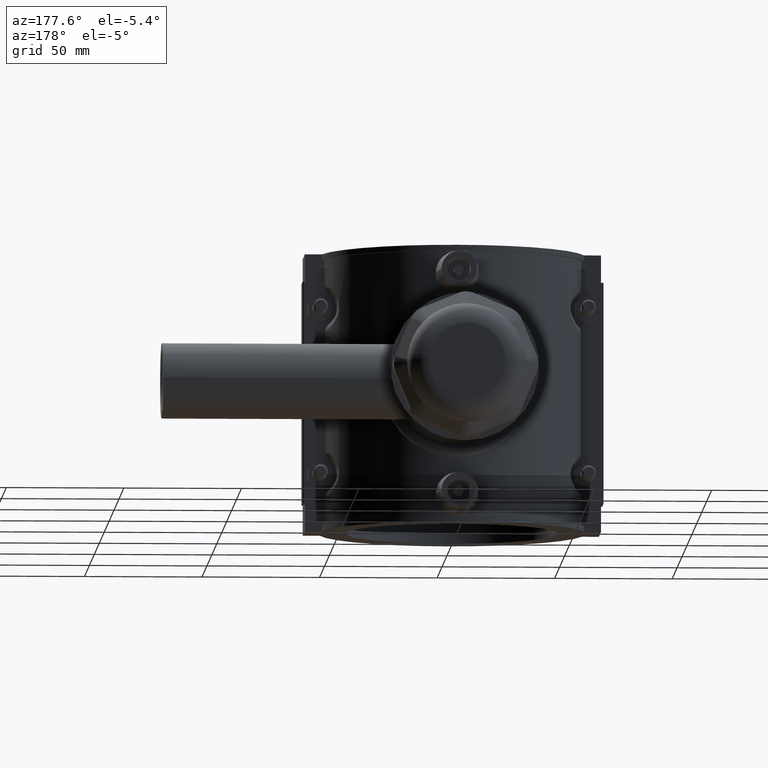
[diagram: clean part render]
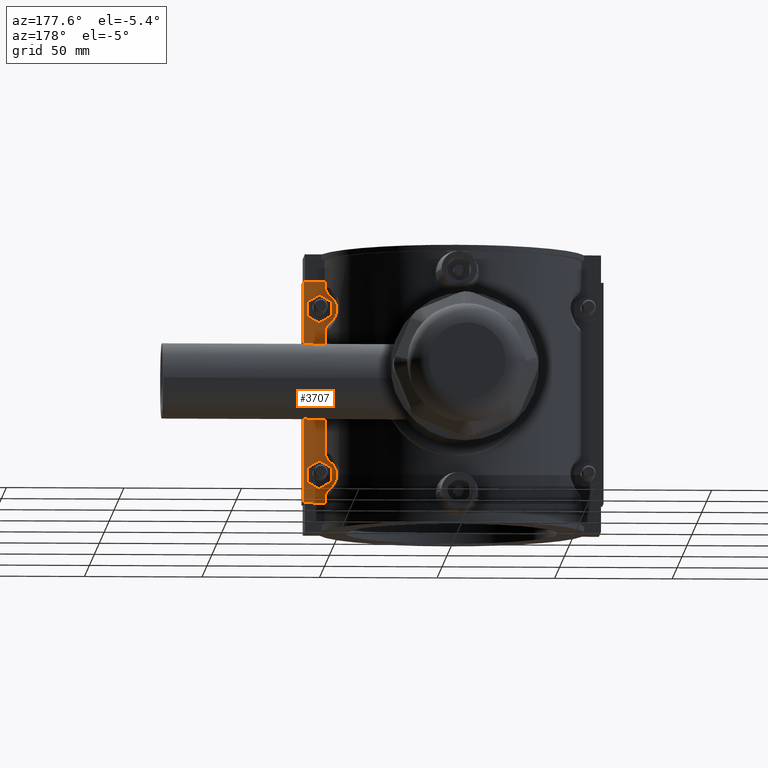
[diagram: same view with one face highlighted and labeled with its STEP entity id]
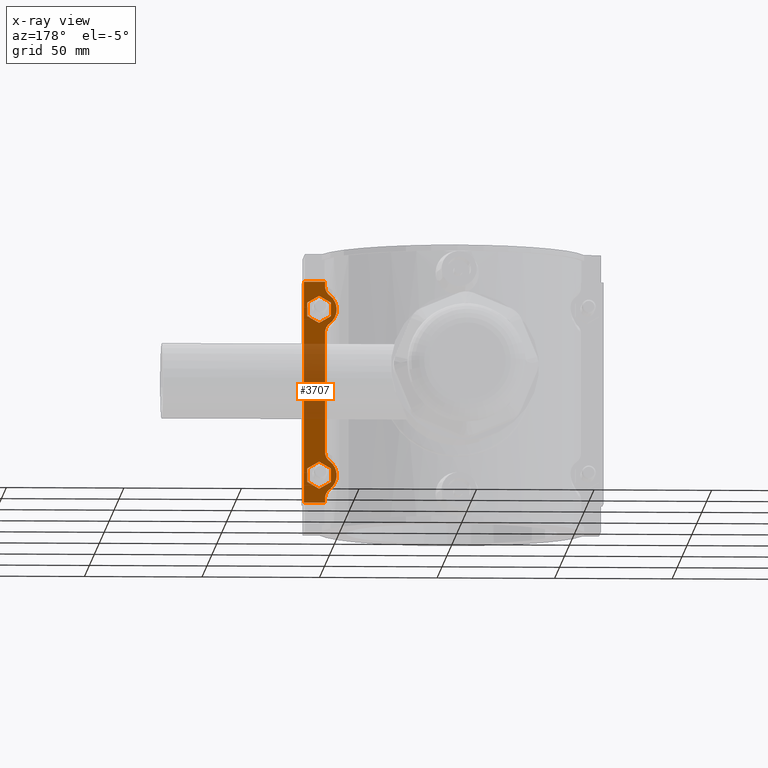
[diagram: x-ray of the same camera — body ghosted, the highlighted face saturated]
A machine part, auxiliary view. The second image highlights one B-rep face of the part: STEP entity #3707.
The next image is the same camera in x-ray: the body ghosted, the highlighted face saturated — about 37% of this face is hidden behind the body in this view.
In plain terms, the highlighted planar face has unit normal (-0, 1, 0).
Its self-contained STEP definition (entity closure, byte-faithful):
#142=LINE('',#6589,#441);
#143=LINE('',#6605,#442);
#144=LINE('',#6622,#443);
#200=LINE('',#7137,#499);
#201=LINE('',#7139,#500);
#202=LINE('',#7178,#501);
#203=LINE('',#7181,#502);
#204=LINE('',#7183,#503);
#205=LINE('',#7185,#504);
#206=LINE('',#7187,#505);
#207=LINE('',#7189,#506);
#208=LINE('',#7190,#507);
#209=LINE('',#7193,#508);
#210=LINE('',#7195,#509);
#211=LINE('',#7197,#510);
#212=LINE('',#7199,#511);
#213=LINE('',#7201,#512);
#214=LINE('',#7202,#513);
#441=VECTOR('',#4498,2.01853589746611);
#442=VECTOR('',#4499,51.2370717949322);
#443=VECTOR('',#4500,2.01853589746609);
#499=VECTOR('',#4602,94.4);
#500=VECTOR('',#4605,9.06125001435102);
#501=VECTOR('',#4610,9.06125001435102);
#502=VECTOR('',#4611,5.77350269189626);
#503=VECTOR('',#4612,5.77350269189626);
#504=VECTOR('',#4613,5.77350269189626);
#505=VECTOR('',#4614,5.77350269189625);
#506=VECTOR('',#4615,5.77350269189625);
#507=VECTOR('',#4616,5.77350269189626);
#508=VECTOR('',#4617,5.77350269189627);
#509=VECTOR('',#4618,5.77350269189624);
#510=VECTOR('',#4619,5.77350269189626);
#511=VECTOR('',#4620,5.77350269189626);
#512=VECTOR('',#4621,5.77350269189626);
#513=VECTOR('',#4622,5.77350269189626);
#706=PLANE('',#3975);
#843=CIRCLE('',#3976,7.5);
#844=CIRCLE('',#3977,7.5);
#922=FACE_BOUND('',#1300,.T.);
#923=FACE_BOUND('',#1301,.T.);
#1058=FACE_OUTER_BOUND('',#1299,.T.);
#1299=EDGE_LOOP('',(#2962,#2963,#2964,#2965,#2966,#2967,#2968,#2969,#2970,
#2971,#2972,#2973));
#1300=EDGE_LOOP('',(#2974,#2975,#2976,#2977,#2978,#2979));
#1301=EDGE_LOOP('',(#2980,#2981,#2982,#2983,#2984,#2985));
#1531=B_SPLINE_CURVE_WITH_KNOTS('',3,(#7141,#7142,#7143,#7144,#7145,#7146,
#7147,#7148),.UNSPECIFIED.,.F.,.F.,(4,2,2,4),(-0.440064843768215,-0.308413227353408,
-0.175431225091515,0.),.UNSPECIFIED.);
#1532=B_SPLINE_CURVE_WITH_KNOTS('',3,(#7151,#7152,#7153,#7154,#7155,#7156,
#7157,#7158),.UNSPECIFIED.,.F.,.F.,(4,2,2,4),(-0.440521008741073,-0.317596506922484,
-0.194829122940551,0.),.UNSPECIFIED.);
#1533=B_SPLINE_CURVE_WITH_KNOTS('',3,(#7160,#7161,#7162,#7163,#7164,#7165,
#7166,#7167),.UNSPECIFIED.,.F.,.F.,(4,2,2,4),(-0.440064843768218,-0.308413227366497,
-0.175431225101102,0.),.UNSPECIFIED.);
#1534=B_SPLINE_CURVE_WITH_KNOTS('',3,(#7170,#7171,#7172,#7173,#7174,#7175,
#7176,#7177),.UNSPECIFIED.,.F.,.F.,(4,2,2,4),(-0.440521008741431,-0.317596506941952,
-0.194829122971924,0.),.UNSPECIFIED.);
#1710=VERTEX_POINT('',#6586);
#1711=VERTEX_POINT('',#6588);
#1712=VERTEX_POINT('',#6590);
#1713=VERTEX_POINT('',#6604);
#1714=VERTEX_POINT('',#6606);
#1715=VERTEX_POINT('',#6621);
#1770=VERTEX_POINT('',#7130);
#1773=VERTEX_POINT('',#7135);
#1774=VERTEX_POINT('',#7140);
#1775=VERTEX_POINT('',#7149);
#1776=VERTEX_POINT('',#7159);
#1777=VERTEX_POINT('',#7168);
#1778=VERTEX_POINT('',#7179);
#1779=VERTEX_POINT('',#7180);
#1780=VERTEX_POINT('',#7182);
#1781=VERTEX_POINT('',#7184);
#1782=VERTEX_POINT('',#7186);
#1783=VERTEX_POINT('',#7188);
#1784=VERTEX_POINT('',#7191);
#1785=VERTEX_POINT('',#7192);
#1786=VERTEX_POINT('',#7194);
#1787=VERTEX_POINT('',#7196);
#1788=VERTEX_POINT('',#7198);
#1789=VERTEX_POINT('',#7200);
#2132=EDGE_CURVE('',#1710,#1711,#142,.T.);
#2134=EDGE_CURVE('',#1712,#1713,#143,.T.);
#2136=EDGE_CURVE('',#1714,#1715,#144,.T.);
#2214=EDGE_CURVE('',#1773,#1770,#200,.T.);
#2215=EDGE_CURVE('',#1715,#1773,#201,.T.);
#2216=EDGE_CURVE('',#1774,#1714,#1531,.T.);
#2217=EDGE_CURVE('',#1775,#1774,#843,.T.);
#2218=EDGE_CURVE('',#1713,#1775,#1532,.T.);
#2219=EDGE_CURVE('',#1776,#1712,#1533,.T.);
#2220=EDGE_CURVE('',#1777,#1776,#844,.T.);
#2221=EDGE_CURVE('',#1711,#1777,#1534,.T.);
#2222=EDGE_CURVE('',#1770,#1710,#202,.T.);
#2223=EDGE_CURVE('',#1778,#1779,#203,.T.);
#2224=EDGE_CURVE('',#1780,#1778,#204,.T.);
#2225=EDGE_CURVE('',#1781,#1780,#205,.T.);
#2226=EDGE_CURVE('',#1782,#1781,#206,.T.);
#2227=EDGE_CURVE('',#1783,#1782,#207,.T.);
#2228=EDGE_CURVE('',#1779,#1783,#208,.T.);
#2229=EDGE_CURVE('',#1784,#1785,#209,.T.);
#2230=EDGE_CURVE('',#1786,#1784,#210,.T.);
#2231=EDGE_CURVE('',#1787,#1786,#211,.T.);
#2232=EDGE_CURVE('',#1788,#1787,#212,.T.);
#2233=EDGE_CURVE('',#1789,#1788,#213,.T.);
#2234=EDGE_CURVE('',#1785,#1789,#214,.T.);
#2962=ORIENTED_EDGE('',*,*,#2214,.F.);
#2963=ORIENTED_EDGE('',*,*,#2215,.F.);
#2964=ORIENTED_EDGE('',*,*,#2136,.F.);
#2965=ORIENTED_EDGE('',*,*,#2216,.F.);
#2966=ORIENTED_EDGE('',*,*,#2217,.F.);
#2967=ORIENTED_EDGE('',*,*,#2218,.F.);
#2968=ORIENTED_EDGE('',*,*,#2134,.F.);
#2969=ORIENTED_EDGE('',*,*,#2219,.F.);
#2970=ORIENTED_EDGE('',*,*,#2220,.F.);
#2971=ORIENTED_EDGE('',*,*,#2221,.F.);
#2972=ORIENTED_EDGE('',*,*,#2132,.F.);
#2973=ORIENTED_EDGE('',*,*,#2222,.F.);
#2974=ORIENTED_EDGE('',*,*,#2223,.F.);
#2975=ORIENTED_EDGE('',*,*,#2224,.F.);
#2976=ORIENTED_EDGE('',*,*,#2225,.F.);
#2977=ORIENTED_EDGE('',*,*,#2226,.F.);
#2978=ORIENTED_EDGE('',*,*,#2227,.F.);
#2979=ORIENTED_EDGE('',*,*,#2228,.F.);
#2980=ORIENTED_EDGE('',*,*,#2229,.F.);
#2981=ORIENTED_EDGE('',*,*,#2230,.F.);
#2982=ORIENTED_EDGE('',*,*,#2231,.F.);
#2983=ORIENTED_EDGE('',*,*,#2232,.F.);
#2984=ORIENTED_EDGE('',*,*,#2233,.F.);
#2985=ORIENTED_EDGE('',*,*,#2234,.F.);
#3707=ADVANCED_FACE('',(#1058,#922,#923),#706,.T.);
#3975=AXIS2_PLACEMENT_3D('',#7138,#4603,#4604);
#3976=AXIS2_PLACEMENT_3D('',#7150,#4606,#4607);
#3977=AXIS2_PLACEMENT_3D('',#7169,#4608,#4609);
#4498=DIRECTION('',(0.,0.,-1.));
#4499=DIRECTION('',(0.,0.,-1.));
#4500=DIRECTION('',(0.,0.,-1.));
#4602=DIRECTION('',(0.,0.,1.));
#4603=DIRECTION('center_axis',(-2.67015664150354E-16,1.,0.));
#4604=DIRECTION('ref_axis',(-1.,-3.5527136788005E-16,0.));
#4605=DIRECTION('',(1.,2.67015664150354E-16,0.));
#4606=DIRECTION('center_axis',(2.67015664150354E-16,-1.,0.));
#4607=DIRECTION('ref_axis',(-1.,0.,0.));
#4608=DIRECTION('center_axis',(2.67015664150354E-16,-1.,0.));
#4609=DIRECTION('ref_axis',(-1.,0.,0.));
#4610=DIRECTION('',(-1.,-2.67015664150354E-16,0.));
#4611=DIRECTION('',(-0.866025403784439,-2.31242348362581E-16,-0.5));
#4612=DIRECTION('',(0.,0.,-1.));
#4613=DIRECTION('',(0.866025403784439,2.31242348362581E-16,-0.499999999999999));
#4614=DIRECTION('',(0.866025403784439,2.3124234836258E-16,0.5));
#4615=DIRECTION('',(0.,0.,1.));
#4616=DIRECTION('',(-0.866025403784438,-2.31242348362581E-16,0.5));
#4617=DIRECTION('',(-0.866025403784439,-2.31242348362581E-16,0.499999999999999));
#4618=DIRECTION('',(-0.866025403784438,-2.3124234836258E-16,-0.500000000000002));
#4619=DIRECTION('',(0.,0.,-1.));
#4620=DIRECTION('',(0.866025403784438,2.31242348362581E-16,-0.5));
#4621=DIRECTION('',(0.866025403784438,2.3124234836258E-16,0.5));
#4622=DIRECTION('',(0.,0.,1.));
#6586=CARTESIAN_POINT('',(54.438749985649,12.2500000000001,47.2));
#6588=CARTESIAN_POINT('',(54.438749985649,12.2500000000001,45.1814641025339));
#6589=CARTESIAN_POINT('',(54.438749985649,12.2500000000001,0.));
#6590=CARTESIAN_POINT('',(54.438749985649,12.2500000000001,25.6185358974661));
#6604=CARTESIAN_POINT('',(54.438749985649,12.2500000000001,-25.6185358974661));
#6605=CARTESIAN_POINT('',(54.438749985649,12.2500000000001,0.));
#6606=CARTESIAN_POINT('',(54.438749985649,12.2500000000001,-45.1814641025339));
#6621=CARTESIAN_POINT('',(54.438749985649,12.2500000000001,-47.2));
#6622=CARTESIAN_POINT('',(54.438749985649,12.2500000000001,0.));
#7130=CARTESIAN_POINT('',(63.5,12.2500000000001,47.2));
#7135=CARTESIAN_POINT('',(63.5,12.2500000000001,-47.2));
#7137=CARTESIAN_POINT('',(63.5,12.2500000000001,0.));
#7138=CARTESIAN_POINT('Origin',(64.,12.2500000000001,0.));
#7139=CARTESIAN_POINT('',(64.,12.2500000000001,-47.2));
#7140=CARTESIAN_POINT('',(52.5099601282465,12.25,-41.4074571950255));
#7141=CARTESIAN_POINT('Ctrl Pts',(52.5099601282465,12.2500000000001,-41.4074571950255));
#7142=CARTESIAN_POINT('Ctrl Pts',(52.8618132784149,12.2500000000001,-41.6704361263721));
#7143=CARTESIAN_POINT('Ctrl Pts',(53.1773817023662,12.2500000000073,-41.9794479005933));
#7144=CARTESIAN_POINT('Ctrl Pts',(53.7188266494775,12.2500000000073,-42.6768242859752));
#7145=CARTESIAN_POINT('Ctrl Pts',(53.9415751250417,12.2500000000143,-43.0631523478586));
#7146=CARTESIAN_POINT('Ctrl Pts',(54.324567270456,12.2500000000143,-44.0179125637633));
#7147=CARTESIAN_POINT('Ctrl Pts',(54.438749985649,12.2500000000001,-44.5966933522289));
#7148=CARTESIAN_POINT('Ctrl Pts',(54.438749985649,12.2500000000001,-45.1814641025339));
#7149=CARTESIAN_POINT('',(52.5099601282465,12.25,-29.3925428049745));
#7150=CARTESIAN_POINT('Origin',(57.,12.2500000000001,-35.4));
#7151=CARTESIAN_POINT('Ctrl Pts',(54.438749985649,12.2500000000001,-25.6185358974661));
#7152=CARTESIAN_POINT('Ctrl Pts',(54.438749985649,12.2500000000001,-26.0279326751817));
#7153=CARTESIAN_POINT('Ctrl Pts',(54.3827545642572,12.2499999999964,-26.4352578628439));
#7154=CARTESIAN_POINT('Ctrl Pts',(54.1650505976458,12.2499999999964,-27.2242292343355));
#7155=CARTESIAN_POINT('Ctrl Pts',(54.0044770408996,12.2499999991954,-27.6023404898768));
#7156=CARTESIAN_POINT('Ctrl Pts',(53.4695880115399,12.2499999991954,-28.5154130990837));
#7157=CARTESIAN_POINT('Ctrl Pts',(53.0301501799842,12.2500000000001,-29.0037470137826));
#7158=CARTESIAN_POINT('Ctrl Pts',(52.5099601282465,12.2500000000001,-29.3925428049745));
#7159=CARTESIAN_POINT('',(52.5099601282465,12.25,29.3925428049745));
#7160=CARTESIAN_POINT('Ctrl Pts',(52.5099601282465,12.2500000000001,29.3925428049745));
#7161=CARTESIAN_POINT('Ctrl Pts',(52.86181327838,12.2500000000001,29.129563873654));
#7162=CARTESIAN_POINT('Ctrl Pts',(53.1773817023037,12.2500000000073,28.8205520994679));
#7163=CARTESIAN_POINT('Ctrl Pts',(53.7188266494142,12.2500000000073,28.1231757141258));
#7164=CARTESIAN_POINT('Ctrl Pts',(53.9415751249935,12.2500000000143,27.7368476522374));
#7165=CARTESIAN_POINT('Ctrl Pts',(54.3245672704436,12.2500000000143,26.7820874362997));
#7166=CARTESIAN_POINT('Ctrl Pts',(54.438749985649,12.2500000000001,26.2033066478031));
#7167=CARTESIAN_POINT('Ctrl Pts',(54.438749985649,12.2500000000001,25.6185358974661));
#7168=CARTESIAN_POINT('',(52.5099601282465,12.25,41.4074571950255));
#7169=CARTESIAN_POINT('Origin',(57.,12.2500000000001,35.4));
#7170=CARTESIAN_POINT('Ctrl Pts',(54.438749985649,12.2500000000001,45.1814641025339));
#7171=CARTESIAN_POINT('Ctrl Pts',(54.438749985649,12.2500000000001,44.7720673248823));
#7172=CARTESIAN_POINT('Ctrl Pts',(54.3827545642747,12.2499999999964,44.3647421372833));
#7173=CARTESIAN_POINT('Ctrl Pts',(54.1650505977237,12.2499999999964,43.5757707658832));
#7174=CARTESIAN_POINT('Ctrl Pts',(54.0044770410137,12.2499999991952,43.1976595103707));
#7175=CARTESIAN_POINT('Ctrl Pts',(53.4695880116808,12.2499999991952,42.2845869010731));
#7176=CARTESIAN_POINT('Ctrl Pts',(53.0301501800679,12.2500000000001,41.7962529862801));
#7177=CARTESIAN_POINT('Ctrl Pts',(52.5099601282465,12.2500000000001,41.4074571950255));
#7178=CARTESIAN_POINT('',(64.,12.2500000000001,47.2));
#7179=CARTESIAN_POINT('',(62.0000000000001,12.2500000000001,32.5132486540519));
#7180=CARTESIAN_POINT('',(57.0000000000001,12.2500000000001,29.6264973081037));
#7181=CARTESIAN_POINT('',(55.7106751765077,12.2500000000001,28.8821052741876));
#7182=CARTESIAN_POINT('',(62.0000000000001,12.2500000000001,38.2867513459481));
#7183=CARTESIAN_POINT('',(62.0000000000001,12.2500000000001,19.1433756729741));
#7184=CARTESIAN_POINT('',(57.,12.2500000000001,41.1735026918963));
#7185=CARTESIAN_POINT('',(68.5393248234923,12.2500000000001,34.5112703987865));
#7186=CARTESIAN_POINT('',(52.0000000000001,12.2500000000001,38.2867513459481));
#7187=CARTESIAN_POINT('',(48.2106751765077,12.2500000000001,36.0989836390579));
#7188=CARTESIAN_POINT('',(52.0000000000001,12.2500000000001,32.5132486540519));
#7189=CARTESIAN_POINT('',(52.0000000000001,12.2500000000001,16.2566243270259));
#7190=CARTESIAN_POINT('',(66.0393248234923,12.2500000000001,24.407640687968));
#7191=CARTESIAN_POINT('',(57.0000000000001,12.2500000000001,-41.1735026918963));
#7192=CARTESIAN_POINT('',(52.,12.2500000000001,-38.2867513459481));
#7193=CARTESIAN_POINT('',(50.7106751765078,12.2500000000001,-37.542359312032));
#7194=CARTESIAN_POINT('',(62.,12.2500000000001,-38.2867513459481));
#7195=CARTESIAN_POINT('',(71.0393248234923,12.2500000000001,-33.0678947258124));
#7196=CARTESIAN_POINT('',(62.,12.2500000000001,-32.5132486540519));
#7197=CARTESIAN_POINT('',(62.,12.2500000000001,-16.2566243270259));
#7198=CARTESIAN_POINT('',(57.,12.2500000000001,-29.6264973081037));
#7199=CARTESIAN_POINT('',(53.2106751765077,12.2500000000001,-27.4387296012135));
#7200=CARTESIAN_POINT('',(52.,12.2500000000001,-32.5132486540519));
#7201=CARTESIAN_POINT('',(63.5393248234923,12.2500000000001,-25.8510163609421));
#7202=CARTESIAN_POINT('',(52.,12.2500000000001,-19.1433756729741));